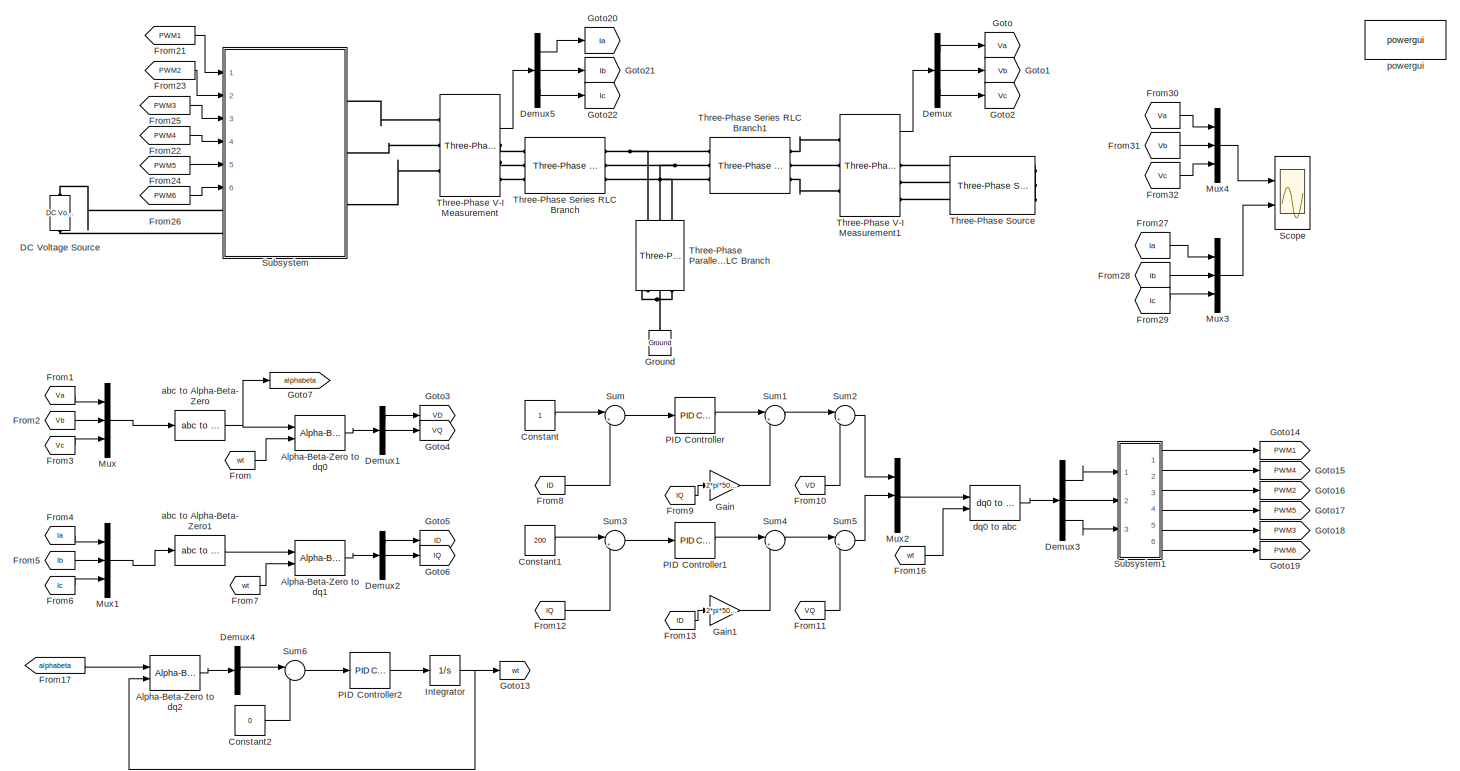
[diagram: root canvas - part 1/1, most of the canvas]
MODEL slx_28e50d750e7f
KIND model
CONFIG AbsTol = auto
CONFIG EnableMultiTasking = off
CONFIG FixedStep = auto
CONFIG MaxStep = auto
CONFIG MinStep = auto
CONFIG RelTol = 1e-3
CONFIG SampleTimeConstraint = Unconstrained
CONFIG Solver = VariableStepAuto
CONFIG SolverName = VariableStepAuto
CONFIG StartTime = 0.0
CONFIG StopTime = 0.1
BLOCK [Reference] Alpha-Beta-Zero to dq0  REF=powerlib_meascontrol/Transformations/Alpha-Beta-Zero
to dq0
  Ports = [2, 1]
  SourceBlock = powerlib_meascontrol/Transformations/Alpha-Beta-Zero\nto dq0
  SourceProductBaseCode = PS
  SourceType = Alpha-Beta-Zero to dq0 Transformation
BLOCK [Reference] Alpha-Beta-Zero to dq1  REF=powerlib_meascontrol/Transformations/Alpha-Beta-Zero
to dq0
  Ports = [2, 1]
  SourceBlock = powerlib_meascontrol/Transformations/Alpha-Beta-Zero\nto dq0
  SourceProductBaseCode = PS
  SourceType = Alpha-Beta-Zero to dq0 Transformation
BLOCK [Reference] Alpha-Beta-Zero to dq2  REF=powerlib_meascontrol/Transformations/Alpha-Beta-Zero
to dq0
  Ports = [2, 1]
  SourceBlock = powerlib_meascontrol/Transformations/Alpha-Beta-Zero\nto dq0
  SourceProductBaseCode = PS
  SourceType = Alpha-Beta-Zero to dq0 Transformation
BLOCK [Constant] Constant
BLOCK [Constant] Constant1
  Value = 200
BLOCK [Constant] Constant2
  Value = 0
BLOCK [Reference] DC Voltage Source  REF=powerlib/Electrical
Sources/DC Voltage Source
  NameLocation = right
  Ports = [0, 0, 0, 0, 0, 1, 1]
  SourceBlock = powerlib/Electrical\nSources/DC Voltage Source
  SourceProductBaseCode = PS
  SourceType = DC Voltage Source
BLOCK [Demux] Demux
  Outputs = 3
  Ports = [1, 3]
BLOCK [Demux] Demux1
  Outputs = 3
  Ports = [1, 3]
BLOCK [Demux] Demux2
  Outputs = 3
  Ports = [1, 3]
BLOCK [Demux] Demux3
  Outputs = 3
  Ports = [1, 3]
BLOCK [Demux] Demux4
  Outputs = 3
  Ports = [1, 3]
BLOCK [Demux] Demux5
  Outputs = 3
  Ports = [1, 3]
BLOCK [From] From
  GotoTag = wt
BLOCK [From] From1
  GotoTag = Va
BLOCK [From] From10
  GotoTag = VD
BLOCK [From] From11
  GotoTag = VQ
BLOCK [From] From12
  GotoTag = IQ
BLOCK [From] From13
  GotoTag = ID
BLOCK [From] From16
  GotoTag = wt
BLOCK [From] From17
  GotoTag = alphabeta
BLOCK [From] From2
  GotoTag = Vb
BLOCK [From] From21
  GotoTag = PWM1
BLOCK [From] From22
  GotoTag = PWM4
BLOCK [From] From23
  GotoTag = PWM2
BLOCK [From] From24
  GotoTag = PWM5
BLOCK [From] From25
  GotoTag = PWM3
BLOCK [From] From26
  GotoTag = PWM6
BLOCK [From] From27
  GotoTag = Ia
BLOCK [From] From28
  GotoTag = Ib
BLOCK [From] From29
  GotoTag = Ic
BLOCK [From] From3
  GotoTag = Vc
BLOCK [From] From30
  GotoTag = Va
BLOCK [From] From31
  GotoTag = Vb
BLOCK [From] From32
  GotoTag = Vc
BLOCK [From] From4
  GotoTag = Ia
BLOCK [From] From5
  GotoTag = Ib
BLOCK [From] From6
  GotoTag = Ic
BLOCK [From] From7
  GotoTag = wt
BLOCK [From] From8
  GotoTag = ID
BLOCK [From] From9
  GotoTag = IQ
BLOCK [Gain] Gain
  Gain = 2*pi*50*1000e-6
BLOCK [Gain] Gain1
  Gain = 2*pi*50*1000e-6
BLOCK [Goto] Goto
  GotoTag = Va
BLOCK [Goto] Goto1
  GotoTag = Vb
BLOCK [Goto] Goto13
  GotoTag = wt
BLOCK [Goto] Goto14
  GotoTag = PWM1
BLOCK [Goto] Goto15
  GotoTag = PWM4
BLOCK [Goto] Goto16
  GotoTag = PWM2
BLOCK [Goto] Goto17
  GotoTag = PWM5
BLOCK [Goto] Goto18
  GotoTag = PWM3
BLOCK [Goto] Goto19
  GotoTag = PWM6
BLOCK [Goto] Goto2
  GotoTag = Vc
BLOCK [Goto] Goto20
  GotoTag = Ia
BLOCK [Goto] Goto21
  GotoTag = Ib
BLOCK [Goto] Goto22
  GotoTag = Ic
BLOCK [Goto] Goto3
  GotoTag = VD
BLOCK [Goto] Goto4
  GotoTag = VQ
BLOCK [Goto] Goto5
  GotoTag = ID
BLOCK [Goto] Goto6
  GotoTag = IQ
BLOCK [Goto] Goto7
  GotoTag = alphabeta
BLOCK [Reference] Ground  REF=powerlib/Elements/Ground
  NameLocation = right
  Ports = [0, 0, 0, 0, 0, 1]
  SourceBlock = powerlib/Elements/Ground
  SourceProductBaseCode = PS
  SourceType = Ground
BLOCK [Integrator] Integrator
  Ports = [1, 1]
BLOCK [Mux] Mux
  DisplayOption = bar
  Inputs = 3
  Ports = [3, 1]
BLOCK [Mux] Mux1
  DisplayOption = bar
  Inputs = 3
  Ports = [3, 1]
BLOCK [Mux] Mux2
  DisplayOption = bar
  Inputs = 3
  Ports = [3, 1]
BLOCK [Mux] Mux3
  DisplayOption = bar
  Inputs = 3
  Ports = [3, 1]
BLOCK [Mux] Mux4
  DisplayOption = bar
  Inputs = 3
  Ports = [3, 1]
BLOCK [Reference] PID Controller  REF=simulink/Continuous/PID Controller
  Ports = [1, 1]
  SourceBlock = simulink/Continuous/PID Controller
  SourceProductBaseCode = SL
  SourceType = PID 1dof
BLOCK [Reference] PID Controller1  REF=simulink/Continuous/PID Controller
  Ports = [1, 1]
  SourceBlock = simulink/Continuous/PID Controller
  SourceProductBaseCode = SL
  SourceType = PID 1dof
BLOCK [Reference] PID Controller2  REF=simulink/Continuous/PID Controller
  Ports = [1, 1]
  SourceBlock = simulink/Continuous/PID Controller
  SourceProductBaseCode = SL
  SourceType = PID 1dof
BLOCK [Scope] Scope
  Floating = off
  NumInputPorts = 2
  Ports = [2]
  ScopeSpecificationString = Simulink.scopes.TimeScopeBlockCfg('CurrentConfiguration', extmgr.ConfigurationSet(extmgr.Configuration('Core','General UI',true),extmgr.Configuration('Core','Source UI',true),extmgr.Configuration('Sources','WiredSimulink',true),extmgr.Configuration('Visuals','Time Domain',true,'SerializedDisplays',{struct('MinYLimReal','-423.56529','MaxYLimReal','423.56496','YLabelReal','','MinYLimMag',' 0.00000',...<+1957ch>
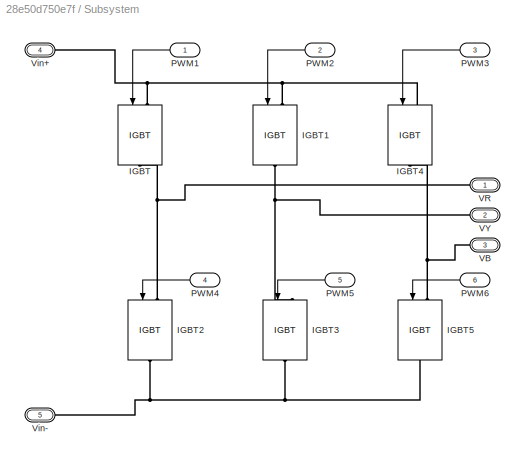
BLOCK [SubSystem] Subsystem
  Ports = [6, 0, 0, 0, 0, 2, 3]
  RequestExecContextInheritance = off
BLOCK [Reference] Subsystem/IGBT  REF=powerlib/Power
Electronics/IGBT
  NameLocation = left
  Ports = [1, 0, 0, 0, 0, 1, 1]
  SourceBlock = powerlib/Power\nElectronics/IGBT
  SourceProductBaseCode = PS
  SourceType = IGBT
BLOCK [Reference] Subsystem/IGBT1  REF=powerlib/Power
Electronics/IGBT
  NameLocation = left
  Ports = [1, 0, 0, 0, 0, 1, 1]
  SourceBlock = powerlib/Power\nElectronics/IGBT
  SourceProductBaseCode = PS
  SourceType = IGBT
BLOCK [Reference] Subsystem/IGBT2  REF=powerlib/Power
Electronics/IGBT
  NameLocation = left
  Ports = [1, 0, 0, 0, 0, 1, 1]
  SourceBlock = powerlib/Power\nElectronics/IGBT
  SourceProductBaseCode = PS
  SourceType = IGBT
BLOCK [Reference] Subsystem/IGBT3  REF=powerlib/Power
Electronics/IGBT
  NameLocation = left
  Ports = [1, 0, 0, 0, 0, 1, 1]
  SourceBlock = powerlib/Power\nElectronics/IGBT
  SourceProductBaseCode = PS
  SourceType = IGBT
BLOCK [Reference] Subsystem/IGBT4  REF=powerlib/Power
Electronics/IGBT
  NameLocation = left
  Ports = [1, 0, 0, 0, 0, 1, 1]
  SourceBlock = powerlib/Power\nElectronics/IGBT
  SourceProductBaseCode = PS
  SourceType = IGBT
BLOCK [Reference] Subsystem/IGBT5  REF=powerlib/Power
Electronics/IGBT
  NameLocation = left
  Ports = [1, 0, 0, 0, 0, 1, 1]
  SourceBlock = powerlib/Power\nElectronics/IGBT
  SourceProductBaseCode = PS
  SourceType = IGBT
BLOCK [Inport] Subsystem/PWM1
  NameLocation = top
BLOCK [Inport] Subsystem/PWM2
  NameLocation = top
  Port = 2
BLOCK [Inport] Subsystem/PWM3
  NameLocation = top
  Port = 3
BLOCK [Inport] Subsystem/PWM4
  NameLocation = top
  Port = 4
BLOCK [Inport] Subsystem/PWM5
  NameLocation = top
  Port = 5
BLOCK [Inport] Subsystem/PWM6
  NameLocation = top
  Port = 6
BLOCK [PMIOPort] Subsystem/VB
  NameLocation = top
  Port = 3
  Side = Right
BLOCK [PMIOPort] Subsystem/VR
  NameLocation = top
  Side = Right
BLOCK [PMIOPort] Subsystem/VY
  NameLocation = top
  Port = 2
  Side = Right
BLOCK [PMIOPort] Subsystem/Vin+
  Port = 4
  Side = Left
BLOCK [PMIOPort] Subsystem/Vin-
  Port = 5
  Side = Left
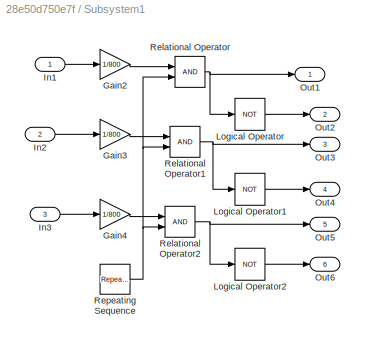
BLOCK [SubSystem] Subsystem1
  Ports = [3, 6]
  RequestExecContextInheritance = off
BLOCK [Gain] Subsystem1/Gain2
  Gain = 1/800
BLOCK [Gain] Subsystem1/Gain3
  Gain = 1/800
BLOCK [Gain] Subsystem1/Gain4
  Gain = 1/800
BLOCK [Inport] Subsystem1/In1
BLOCK [Inport] Subsystem1/In2
  Port = 2
BLOCK [Inport] Subsystem1/In3
  Port = 3
BLOCK [Logic] Subsystem1/Logical Operator
  AllPortsSameDT = off
  Operator = NOT
  OutDataTypeStr = boolean
  Ports = [1, 1]
BLOCK [Logic] Subsystem1/Logical Operator1
  AllPortsSameDT = off
  Operator = NOT
  OutDataTypeStr = boolean
  Ports = [1, 1]
BLOCK [Logic] Subsystem1/Logical Operator2
  AllPortsSameDT = off
  Operator = NOT
  OutDataTypeStr = boolean
  Ports = [1, 1]
BLOCK [Outport] Subsystem1/Out1
BLOCK [Outport] Subsystem1/Out2
  Port = 2
BLOCK [Outport] Subsystem1/Out3
  Port = 3
BLOCK [Outport] Subsystem1/Out4
  Port = 4
BLOCK [Outport] Subsystem1/Out5
  Port = 5
BLOCK [Outport] Subsystem1/Out6
  Port = 6
BLOCK [RelationalOperator] Subsystem1/Relational Operator
  InputSameDT = off
  OutDataTypeStr = boolean
  Ports = [2, 1]
  RndMeth = Simplest
BLOCK [RelationalOperator] Subsystem1/Relational Operator1
  InputSameDT = off
  OutDataTypeStr = boolean
  Ports = [2, 1]
  RndMeth = Simplest
BLOCK [RelationalOperator] Subsystem1/Relational Operator2
  InputSameDT = off
  OutDataTypeStr = boolean
  Ports = [2, 1]
  RndMeth = Simplest
BLOCK [Reference] Subsystem1/Repeating Sequence  REF=simulink/Sources/Repeating
Sequence
  Ports = [0, 1]
  SourceBlock = simulink/Sources/Repeating\nSequence
  SourceProductBaseCode = SL
  SourceType = Repeating table
BLOCK [Sum] Sum
  Inputs = |+-
  Ports = [2, 1]
BLOCK [Sum] Sum1
  Inputs = |++
  Ports = [2, 1]
BLOCK [Sum] Sum2
  Inputs = |++
  Ports = [2, 1]
BLOCK [Sum] Sum3
  Inputs = |+-
  Ports = [2, 1]
BLOCK [Sum] Sum4
  Inputs = |++
  Ports = [2, 1]
BLOCK [Sum] Sum5
  Inputs = |++
  Ports = [2, 1]
BLOCK [Sum] Sum6
  Inputs = |-+
  Ports = [2, 1]
BLOCK [Reference] Three-Phase Parallel RLC Branch  REF=powerlib/Elements/Three-Phase
Parallel RLC Branch
  AttributesFormatString = \n
  NameLocation = left
  Ports = [0, 0, 0, 0, 0, 3, 3]
  SourceBlock = powerlib/Elements/Three-Phase\nParallel RLC Branch
  SourceProductBaseCode = PS
  SourceType = Three-Phase Parallel RLC Branch
BLOCK [Reference] Three-Phase Series RLC Branch  REF=powerlib/Elements/Three-Phase
Series RLC Branch
  AttributesFormatString = \n
  Ports = [0, 0, 0, 0, 0, 3, 3]
  SourceBlock = powerlib/Elements/Three-Phase\nSeries RLC Branch
  SourceProductBaseCode = PS
  SourceType = Three-Phase Series RLC Branch
BLOCK [Reference] Three-Phase Series RLC Branch1  REF=powerlib/Elements/Three-Phase
Series RLC Branch
  AttributesFormatString = \n
  Ports = [0, 0, 0, 0, 0, 3, 3]
  SourceBlock = powerlib/Elements/Three-Phase\nSeries RLC Branch
  SourceProductBaseCode = PS
  SourceType = Three-Phase Series RLC Branch
BLOCK [Reference] Three-Phase Source  REF=powerlib/Electrical
Sources/Three-Phase Source
  NameLocation = top
  Ports = [0, 0, 0, 0, 0, 0, 3]
  SourceBlock = powerlib/Electrical\nSources/Three-Phase Source
  SourceProductBaseCode = PS
  SourceType = Three-Phase Source
BLOCK [Reference] Three-Phase V-I Measurement  REF=powerlib/Measurements/Three-Phase
V-I Measurement
  Ports = [0, 2, 0, 0, 0, 3, 3]
  SourceBlock = powerlib/Measurements/Three-Phase\nV-I Measurement
  SourceProductBaseCode = PS
  SourceType = Three-Phase VI Measurement
BLOCK [Reference] Three-Phase V-I Measurement1  REF=powerlib/Measurements/Three-Phase
V-I Measurement
  Ports = [0, 2, 0, 0, 0, 3, 3]
  SourceBlock = powerlib/Measurements/Three-Phase\nV-I Measurement
  SourceProductBaseCode = PS
  SourceType = Three-Phase VI Measurement
BLOCK [Reference] abc to Alpha-Beta-Zero  REF=powerlib_meascontrol/Transformations/abc to
Alpha-Beta-Zero
  Ports = [1, 1]
  SourceBlock = powerlib_meascontrol/Transformations/abc to\nAlpha-Beta-Zero
  SourceProductBaseCode = PS
  SourceType = abc to Alpha-Beta-Zero Transformation
BLOCK [Reference] abc to Alpha-Beta-Zero1  REF=powerlib_meascontrol/Transformations/abc to
Alpha-Beta-Zero
  Ports = [1, 1]
  SourceBlock = powerlib_meascontrol/Transformations/abc to\nAlpha-Beta-Zero
  SourceProductBaseCode = PS
  SourceType = abc to Alpha-Beta-Zero Transformation
BLOCK [Reference] dq0 to abc  REF=powerlib_meascontrol/Transformations/dq0 to abc
  Ports = [2, 1]
  SourceBlock = powerlib_meascontrol/Transformations/dq0 to abc
  SourceProductBaseCode = PS
  SourceType = dq0 to abc Transformation
BLOCK [Reference] powergui  REF=powerlib/powergui
  Ports = []
  Priority = 1
  SourceBlock = powerlib/powergui
  SourceProductBaseCode = PS
  SourceType = PSB option menu block
LINE Alpha-Beta-Zero to dq0:1 -> Demux1:1
LINE Alpha-Beta-Zero to dq1:1 -> Demux2:1
LINE Alpha-Beta-Zero to dq2:1 -> Demux4:1
LINE Constant1:1 -> Sum3:1
LINE Constant2:1 -> Sum6:2
LINE Constant:1 -> Sum:1
LINE Demux1:1 -> Goto3:1
LINE Demux1:2 -> Goto4:1
LINE Demux2:1 -> Goto5:1
LINE Demux2:2 -> Goto6:1
LINE Demux3:1 -> Subsystem1:1
LINE Demux3:2 -> Subsystem1:2
LINE Demux3:3 -> Subsystem1:3
LINE Demux4:2 -> Sum6:1
LINE Demux5:1 -> Goto20:1
LINE Demux5:2 -> Goto21:1
LINE Demux5:3 -> Goto22:1
LINE Demux:1 -> Goto:1
LINE Demux:2 -> Goto1:1
LINE Demux:3 -> Goto2:1
LINE From10:1 -> Sum2:2
LINE From11:1 -> Sum5:2
LINE From12:1 -> Sum3:2
LINE From13:1 -> Gain1:1
LINE From16:1 -> dq0 to abc:2
LINE From17:1 -> Alpha-Beta-Zero to dq2:1
LINE From1:1 -> Mux:1
LINE From21:1 -> Subsystem:1
LINE From22:1 -> Subsystem:4
LINE From23:1 -> Subsystem:2
LINE From24:1 -> Subsystem:5
LINE From25:1 -> Subsystem:3
LINE From26:1 -> Subsystem:6
LINE From27:1 -> Mux3:1
LINE From28:1 -> Mux3:2
LINE From29:1 -> Mux3:3
LINE From2:1 -> Mux:2
LINE From30:1 -> Mux4:1
LINE From31:1 -> Mux4:2
LINE From32:1 -> Mux4:3
LINE From3:1 -> Mux:3
LINE From4:1 -> Mux1:1
LINE From5:1 -> Mux1:2
LINE From6:1 -> Mux1:3
LINE From7:1 -> Alpha-Beta-Zero to dq1:2
LINE From8:1 -> Sum:2
LINE From9:1 -> Gain:1
LINE From:1 -> Alpha-Beta-Zero to dq0:2
LINE Gain1:1 -> Sum4:2
LINE Gain:1 -> Sum1:2
NET Integrator:1 -> Alpha-Beta-Zero to dq2:2, Goto13:1
LINE Mux1:1 -> abc to Alpha-Beta-Zero1:1
LINE Mux2:1 -> dq0 to abc:1
LINE Mux3:1 -> Scope:2
LINE Mux4:1 -> Scope:1
LINE Mux:1 -> abc to Alpha-Beta-Zero:1
LINE PID Controller1:1 -> Sum4:1
LINE PID Controller2:1 -> Integrator:1
LINE PID Controller:1 -> Sum1:1
LINE Subsystem/PWM1:1 -> Subsystem/IGBT:1
LINE Subsystem/PWM2:1 -> Subsystem/IGBT1:1
LINE Subsystem/PWM3:1 -> Subsystem/IGBT4:1
LINE Subsystem/PWM4:1 -> Subsystem/IGBT2:1
LINE Subsystem/PWM5:1 -> Subsystem/IGBT3:1
LINE Subsystem/PWM6:1 -> Subsystem/IGBT5:1
LINE Subsystem1/Gain2:1 -> Subsystem1/Relational Operator:1
LINE Subsystem1/Gain3:1 -> Subsystem1/Relational Operator1:1
LINE Subsystem1/Gain4:1 -> Subsystem1/Relational Operator2:1
LINE Subsystem1/In1:1 -> Subsystem1/Gain2:1
LINE Subsystem1/In2:1 -> Subsystem1/Gain3:1
LINE Subsystem1/In3:1 -> Subsystem1/Gain4:1
LINE Subsystem1/Logical Operator1:1 -> Subsystem1/Out4:1
LINE Subsystem1/Logical Operator2:1 -> Subsystem1/Out6:1
LINE Subsystem1/Logical Operator:1 -> Subsystem1/Out2:1
NET Subsystem1/Relational Operator1:1 -> Subsystem1/Logical Operator1:1, Subsystem1/Out3:1
NET Subsystem1/Relational Operator2:1 -> Subsystem1/Logical Operator2:1, Subsystem1/Out5:1
NET Subsystem1/Relational Operator:1 -> Subsystem1/Logical Operator:1, Subsystem1/Out1:1
NET Subsystem1/Repeating Sequence:1 -> Subsystem1/Relational Operator1:2, Subsystem1/Relational Operator2:2, Subsystem1/Relational Operator:2
LINE Subsystem1:1 -> Goto14:1
LINE Subsystem1:2 -> Goto15:1
LINE Subsystem1:3 -> Goto16:1
LINE Subsystem1:4 -> Goto17:1
LINE Subsystem1:5 -> Goto18:1
LINE Subsystem1:6 -> Goto19:1
LINE Sum1:1 -> Sum2:1
LINE Sum2:1 -> Mux2:1
LINE Sum3:1 -> PID Controller1:1
LINE Sum4:1 -> Sum5:1
LINE Sum5:1 -> Mux2:2
LINE Sum6:1 -> PID Controller2:1
LINE Sum:1 -> PID Controller:1
LINE Three-Phase V-I Measurement1:1 -> Demux:1
LINE Three-Phase V-I Measurement:2 -> Demux5:1
LINE abc to Alpha-Beta-Zero1:1 -> Alpha-Beta-Zero to dq1:1
NET abc to Alpha-Beta-Zero:1 -> Alpha-Beta-Zero to dq0:1, Goto7:1
LINE dq0 to abc:1 -> Demux3:1
PLINE DC Voltage Source:LConn1 -- Subsystem:LConn2
PLINE DC Voltage Source:RConn1 -- Subsystem:LConn1
PNET net1: Ground:LConn1 -- Three-Phase Parallel RLC Branch:RConn1 -- Three-Phase Parallel RLC Branch:RConn2 -- Three-Phase Parallel RLC Branch:RConn3
PNET net2: Subsystem/IGBT1:LConn1 -- Subsystem/IGBT4:LConn1 -- Subsystem/IGBT:LConn1 -- Subsystem/Vin+:RConn1
PNET net3: Subsystem/IGBT1:RConn1 -- Subsystem/IGBT3:LConn1 -- Subsystem/VY:RConn1
PNET net4: Subsystem/IGBT2:LConn1 -- Subsystem/IGBT:RConn1 -- Subsystem/VR:RConn1
PNET net5: Subsystem/IGBT2:RConn1 -- Subsystem/IGBT3:RConn1 -- Subsystem/IGBT5:RConn1 -- Subsystem/Vin-:RConn1
PNET net6: Subsystem/IGBT4:RConn1 -- Subsystem/IGBT5:LConn1 -- Subsystem/VB:RConn1
PLINE Subsystem:RConn1 -- Three-Phase V-I Measurement:LConn1
PLINE Subsystem:RConn2 -- Three-Phase V-I Measurement:LConn2
PLINE Subsystem:RConn3 -- Three-Phase V-I Measurement:LConn3
PNET net7: Three-Phase Parallel RLC Branch:LConn1 -- Three-Phase Series RLC Branch1:LConn1 -- Three-Phase Series RLC Branch:RConn1
PNET net8: Three-Phase Parallel RLC Branch:LConn2 -- Three-Phase Series RLC Branch1:LConn2 -- Three-Phase Series RLC Branch:RConn2
PNET net9: Three-Phase Parallel RLC Branch:LConn3 -- Three-Phase Series RLC Branch1:LConn3 -- Three-Phase Series RLC Branch:RConn3
PLINE Three-Phase Series RLC Branch1:RConn1 -- Three-Phase V-I Measurement1:LConn1
PLINE Three-Phase Series RLC Branch1:RConn2 -- Three-Phase V-I Measurement1:LConn2
PLINE Three-Phase Series RLC Branch1:RConn3 -- Three-Phase V-I Measurement1:LConn3
PLINE Three-Phase Series RLC Branch:LConn1 -- Three-Phase V-I Measurement:RConn1
PLINE Three-Phase Series RLC Branch:LConn2 -- Three-Phase V-I Measurement:RConn2
PLINE Three-Phase Series RLC Branch:LConn3 -- Three-Phase V-I Measurement:RConn3
PLINE Three-Phase Source:RConn1 -- Three-Phase V-I Measurement1:RConn3
PLINE Three-Phase Source:RConn2 -- Three-Phase V-I Measurement1:RConn2
PLINE Three-Phase Source:RConn3 -- Three-Phase V-I Measurement1:RConn1
note: NET lines group one-source signal fan-out (src -> all destinations, sorted); 1:1 wires keep LINE; PNET lines group multi-terminal physical nets as a canonical sorted terminal list (undirected conserving connections); 2-terminal nets keep the pairwise PLINE form
